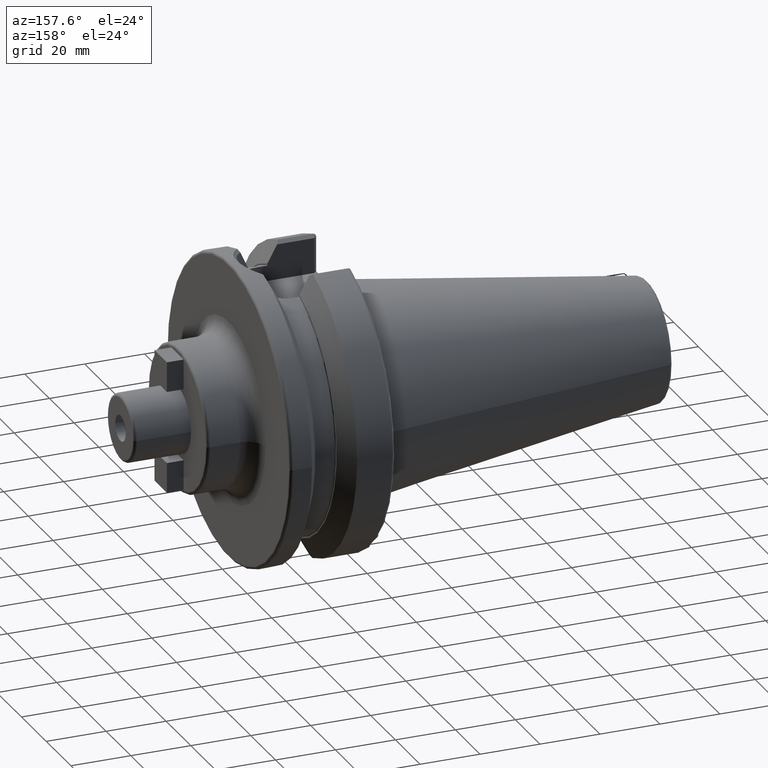
[diagram: clean part render]
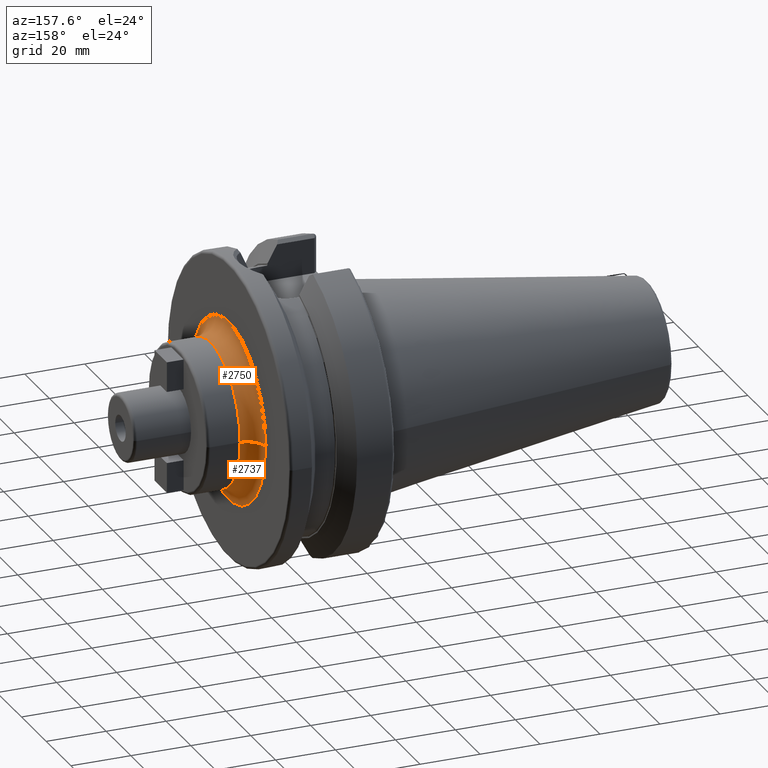
[diagram: same view with one multi-face feature highlighted, each face labeled with its STEP entity id]
A machine part, auxiliary view. The highlighted faces form ONE feature: a constant-radius fillet chain: 2 tangent blend faces with common blend radius 6 mm. The faces share edges in the B-rep.
Their STEP definitions:
[1] entity #2737 (Torus):
#834=CARTESIAN_POINT('',(3.8E1,0.E0,0.E0));
#835=DIRECTION('',(1.E0,0.E0,0.E0));
#836=DIRECTION('',(0.E0,-1.E0,0.E0));
#837=AXIS2_PLACEMENT_3D('',#834,#835,#836);
#844=CARTESIAN_POINT('',(4.4E1,-3.E1,4.121702978921E-13));
#845=DIRECTION('',(0.E0,-1.373814256800E-14,-1.E0));
#846=DIRECTION('',(-1.E0,0.E0,0.E0));
#847=AXIS2_PLACEMENT_3D('',#844,#845,#846);
#849=CARTESIAN_POINT('',(4.4E1,3.E1,-4.156119892684E-13));
#850=DIRECTION('',(0.E0,1.385263431741E-14,1.E0));
#851=DIRECTION('',(-1.E0,0.E0,0.E0));
#852=AXIS2_PLACEMENT_3D('',#849,#850,#851);
#883=CARTESIAN_POINT('',(4.4E1,0.E0,0.E0));
#884=DIRECTION('',(1.E0,0.E0,0.E0));
#885=DIRECTION('',(0.E0,-1.E0,0.E0));
#886=AXIS2_PLACEMENT_3D('',#883,#884,#885);
#1571=CARTESIAN_POINT('',(3.8E1,-3.E1,0.E0));
#1572=CARTESIAN_POINT('',(3.8E1,3.E1,0.E0));
#1573=VERTEX_POINT('',#1571);
#1574=VERTEX_POINT('',#1572);
#1575=CARTESIAN_POINT('',(4.4E1,-2.4E1,0.E0));
#1576=CARTESIAN_POINT('',(4.4E1,2.4E1,0.E0));
#1577=VERTEX_POINT('',#1575);
#1578=VERTEX_POINT('',#1576);
#2723=CARTESIAN_POINT('',(4.4E1,0.E0,0.E0));
#2724=DIRECTION('',(1.E0,0.E0,0.E0));
#2725=DIRECTION('',(0.E0,-9.999794752457E-1,6.406956165906E-3));
#2726=AXIS2_PLACEMENT_3D('',#2723,#2724,#2725);
#2727=TOROIDAL_SURFACE('',#2726,3.E1,6.E0);
#2728=ORIENTED_EDGE('',*,*,#2716,.F.);
#2730=ORIENTED_EDGE('',*,*,#2729,.T.);
#2732=ORIENTED_EDGE('',*,*,#2731,.T.);
#2734=ORIENTED_EDGE('',*,*,#2733,.F.);
#2735=EDGE_LOOP('',(#2728,#2730,#2732,#2734));
#2736=FACE_OUTER_BOUND('',#2735,.F.);
#2737=ADVANCED_FACE('',(#2736),#2727,.F.);
#838=CIRCLE('',#837,3.E1);
#848=CIRCLE('',#847,6.E0);
#853=CIRCLE('',#852,6.E0);
#887=CIRCLE('',#886,2.4E1);
#2716=EDGE_CURVE('',#1573,#1574,#838,.T.);
#2729=EDGE_CURVE('',#1573,#1577,#848,.T.);
#2731=EDGE_CURVE('',#1577,#1578,#887,.T.);
#2733=EDGE_CURVE('',#1574,#1578,#853,.T.);
[2] entity #2750 (Torus):
#839=CARTESIAN_POINT('',(3.8E1,0.E0,0.E0));
#840=DIRECTION('',(1.E0,0.E0,0.E0));
#841=DIRECTION('',(0.E0,1.E0,0.E0));
#842=AXIS2_PLACEMENT_3D('',#839,#840,#841);
#844=CARTESIAN_POINT('',(4.4E1,-3.E1,4.121702978921E-13));
#845=DIRECTION('',(0.E0,-1.373814256800E-14,-1.E0));
#846=DIRECTION('',(-1.E0,0.E0,0.E0));
#847=AXIS2_PLACEMENT_3D('',#844,#845,#846);
#849=CARTESIAN_POINT('',(4.4E1,3.E1,-4.156119892684E-13));
#850=DIRECTION('',(0.E0,1.385263431741E-14,1.E0));
#851=DIRECTION('',(-1.E0,0.E0,0.E0));
#852=AXIS2_PLACEMENT_3D('',#849,#850,#851);
#859=CARTESIAN_POINT('',(4.4E1,0.E0,0.E0));
#860=DIRECTION('',(1.E0,0.E0,0.E0));
#861=DIRECTION('',(0.E0,1.E0,0.E0));
#862=AXIS2_PLACEMENT_3D('',#859,#860,#861);
#1571=CARTESIAN_POINT('',(3.8E1,-3.E1,0.E0));
#1572=CARTESIAN_POINT('',(3.8E1,3.E1,0.E0));
#1573=VERTEX_POINT('',#1571);
#1574=VERTEX_POINT('',#1572);
#1575=CARTESIAN_POINT('',(4.4E1,-2.4E1,0.E0));
#1576=CARTESIAN_POINT('',(4.4E1,2.4E1,0.E0));
#1577=VERTEX_POINT('',#1575);
#1578=VERTEX_POINT('',#1576);
#2738=CARTESIAN_POINT('',(4.4E1,0.E0,0.E0));
#2739=DIRECTION('',(1.E0,0.E0,0.E0));
#2740=DIRECTION('',(0.E0,9.999794752457E-1,-6.406956165906E-3));
#2741=AXIS2_PLACEMENT_3D('',#2738,#2739,#2740);
#2742=TOROIDAL_SURFACE('',#2741,3.E1,6.E0);
#2743=ORIENTED_EDGE('',*,*,#2718,.F.);
#2744=ORIENTED_EDGE('',*,*,#2733,.T.);
#2746=ORIENTED_EDGE('',*,*,#2745,.T.);
#2747=ORIENTED_EDGE('',*,*,#2729,.F.);
#2748=EDGE_LOOP('',(#2743,#2744,#2746,#2747));
#2749=FACE_OUTER_BOUND('',#2748,.F.);
#2750=ADVANCED_FACE('',(#2749),#2742,.F.);
#843=CIRCLE('',#842,3.E1);
#848=CIRCLE('',#847,6.E0);
#853=CIRCLE('',#852,6.E0);
#863=CIRCLE('',#862,2.4E1);
#2718=EDGE_CURVE('',#1574,#1573,#843,.T.);
#2729=EDGE_CURVE('',#1573,#1577,#848,.T.);
#2733=EDGE_CURVE('',#1574,#1578,#853,.T.);
#2745=EDGE_CURVE('',#1578,#1577,#863,.T.);